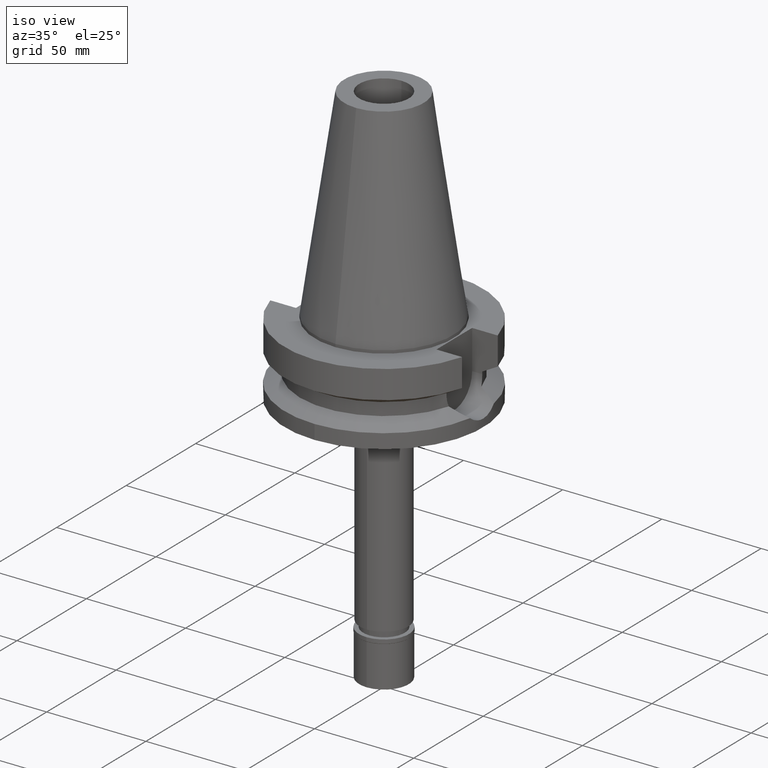
[diagram: clean part render]
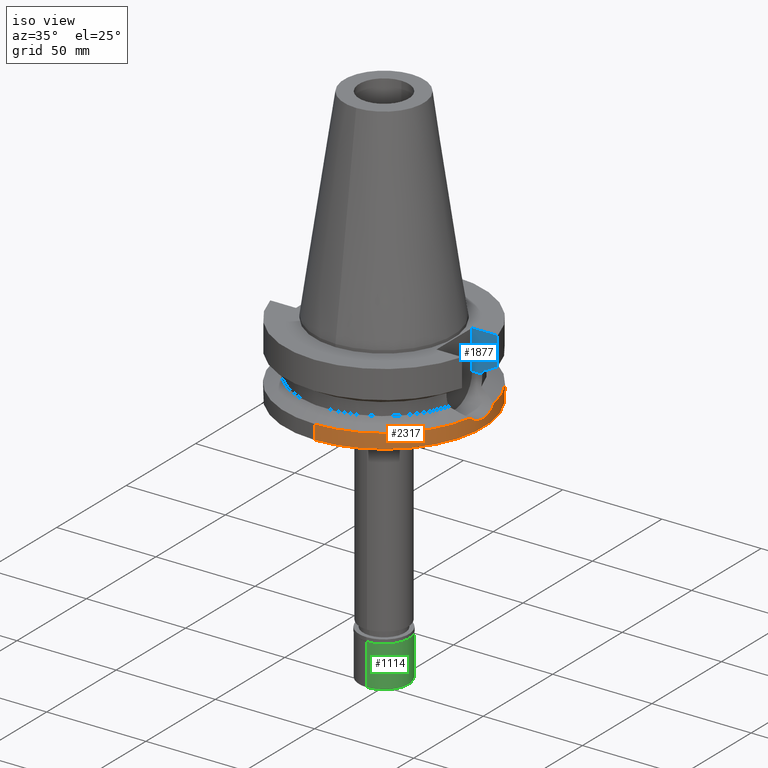
[diagram: same view with three faces highlighted in distinct colors, each labeled with its STEP entity id]
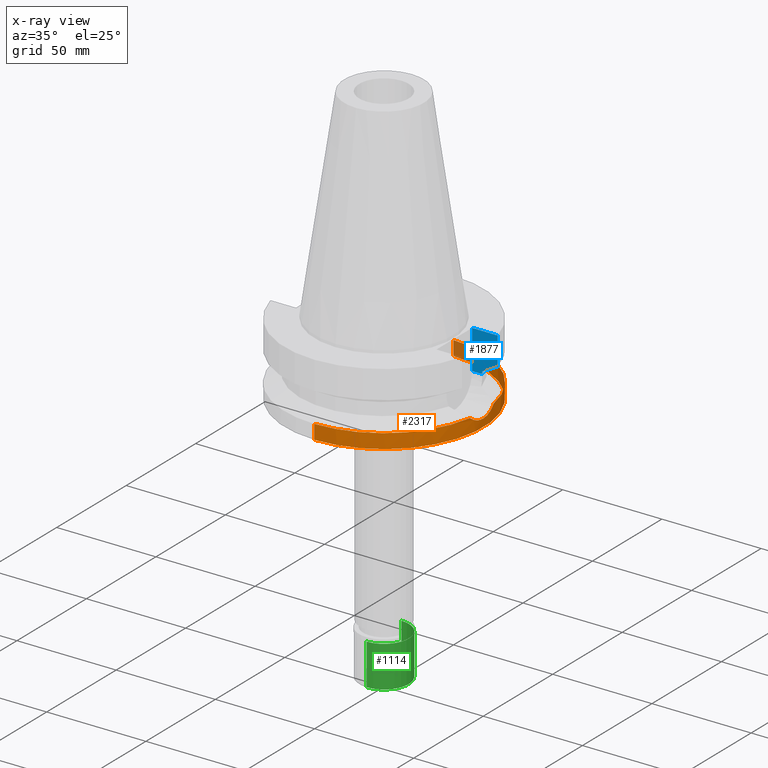
[diagram: x-ray of the same camera — body ghosted, the three highlighted faces saturated]
A machine part, iso view with three faces highlighted in distinct colors.
The next image is the same camera in x-ray (body ghosted, the three faces saturated) — at least one of them is partly hidden behind the body in this view.
Their STEP definitions:

[orange] entity #2317 — the highlighted cylindrical surface (partial cylindrical patch) has radius 50 mm, axis along (0, 0, -1).
#12 = CARTESIAN_POINT ( 'NONE',  ( 49.76776460765361776, -4.813848196981036054, -33.06469792024205390 ) ) ;
#71 = ORIENTED_EDGE ( 'NONE', *, *, #1002, .T. ) ;
#82 = CARTESIAN_POINT ( 'NONE',  ( 0.0000000000000000000, 50.00000000000000000, -30.73730776426999967 ) ) ;
#106 = CARTESIAN_POINT ( 'NONE',  ( 49.79239168047833175, 4.551645640407262050, -33.16686574701833479 ) ) ;
#122 = CARTESIAN_POINT ( 'NONE',  ( 49.79885500148548516, 4.480269389477726349, -33.19370440297814895 ) ) ;
#143 = CARTESIAN_POINT ( 'NONE',  ( 49.79170874926221302, 4.559128567680573951, -33.16402800638738313 ) ) ;
#157 = CARTESIAN_POINT ( 'NONE',  ( 49.84837068523355441, 3.895670753338368986, -33.39815263647283672 ) ) ;
#222 = CARTESIAN_POINT ( 'NONE',  ( 49.75680721490953573, -4.924372200204752303, -33.01927248165932838 ) ) ;
#301 = CARTESIAN_POINT ( 'NONE',  ( 0.0000000000000000000, 50.00000000000000000, -30.73730776426999967 ) ) ;
#321 = EDGE_CURVE ( 'NONE', #2745, #1904, #2240, .T. ) ;
#327 = DIRECTION ( 'NONE',  ( 0.0000000000000000000, -1.000000000000000000, 0.0000000000000000000 ) ) ;
#410 = DIRECTION ( 'NONE',  ( 0.0000000000000000000, 0.0000000000000000000, 1.000000000000000000 ) ) ;
#470 = DIRECTION ( 'NONE',  ( 0.0000000000000000000, 0.0000000000000000000, -1.000000000000000000 ) ) ;
#527 = CARTESIAN_POINT ( 'NONE',  ( 49.38719230598682230, -7.838125008116482384, -31.37801139005446416 ) ) ;
#587 = CARTESIAN_POINT ( 'NONE',  ( 49.73972721062401803, 5.127761864268430614, -32.94800215661364717 ) ) ;
#602 = CARTESIAN_POINT ( 'NONE',  ( 49.80628532617758708, 4.396934166445128689, -33.22451764734276480 ) ) ;
#608 = VERTEX_POINT ( 'NONE', #82 ) ;
#675 = CARTESIAN_POINT ( 'NONE',  ( 50.00000025974999573, 1.773839656225000199E-14, -34.00000114470000057 ) ) ;
#684 = VERTEX_POINT ( 'NONE', #1324 ) ;
#737 = CARTESIAN_POINT ( 'NONE',  ( 49.78971523551651046, -4.580896941052365889, -33.15574468995585278 ) ) ;
#755 = CARTESIAN_POINT ( 'NONE',  ( 49.26250064874000145, 8.556052234130000045, -30.73730776426999967 ) ) ;
#763 = CARTESIAN_POINT ( 'NONE',  ( 0.0000000000000000000, 2.629194213088999901E-14, 114.6899999999999977 ) ) ;
#771 = CARTESIAN_POINT ( 'NONE',  ( 49.49360748619132977, -7.117022366094991170, -31.87769826617949676 ) ) ;
#788 = CARTESIAN_POINT ( 'NONE',  ( 49.73403571955997649, -5.148397096680097818, -32.92466732332577095 ) ) ;
#831 = DIRECTION ( 'NONE',  ( 0.0000000000000000000, 0.0000000000000000000, -1.000000000000000000 ) ) ;
#835 = CIRCLE ( 'NONE', #2560, 50.00000000000000000 ) ;
#874 = AXIS2_PLACEMENT_3D ( 'NONE', #950, #470, #1455 ) ;
#877 = CARTESIAN_POINT ( 'NONE',  ( 49.38719044871845654, 7.838135701543769152, -31.37800184686208382 ) ) ;
#950 = CARTESIAN_POINT ( 'NONE',  ( 0.0000000000000000000, 0.0000000000000000000, -30.73730776426999967 ) ) ;
#952 = CARTESIAN_POINT ( 'NONE',  ( 49.98261131041361693, -1.500624886172816641, -33.93573978230300980 ) ) ;
#1002 = EDGE_CURVE ( 'NONE', #608, #3096, #1071, .T. ) ;
#1021 = LINE ( 'NONE', #301, #1375 ) ;
#1071 = CIRCLE ( 'NONE', #874, 50.00000000000000000 ) ;
#1094 = EDGE_CURVE ( 'NONE', #608, #1904, #1021, .T. ) ;
#1099 = CARTESIAN_POINT ( 'NONE',  ( 49.79347438493346090, 4.539752812038758911, -33.17136368401218505 ) ) ;
#1101 = DIRECTION ( 'NONE',  ( 0.0000000000000000000, 0.0000000000000000000, -1.000000000000000000 ) ) ;
#1131 = CARTESIAN_POINT ( 'NONE',  ( 49.90869642993366284, 3.032807478717609584, -33.64331436785673191 ) ) ;
#1245 = CARTESIAN_POINT ( 'NONE',  ( 0.0000000000000000000, -50.00000000000000000, -38.00000000000000000 ) ) ;
#1257 = CARTESIAN_POINT ( 'NONE',  ( 49.78849615495381897, -4.594160771130254339, -33.15068097419731430 ) ) ;
#1324 = CARTESIAN_POINT ( 'NONE',  ( 0.0000000000000000000, -50.00000000000000000, -30.73730776426999967 ) ) ;
#1348 = CARTESIAN_POINT ( 'NONE',  ( 50.00000025975000284, 0.7410749815654468220, -34.00000000000000000 ) ) ;
#1355 = VERTEX_POINT ( 'NONE', #675 ) ;
#1375 = VECTOR ( 'NONE', #2655, 1000.000000000000000 ) ;
#1379 = DIRECTION ( 'NONE',  ( 0.9852500129747439050, -0.1711210446826074982, 0.0000000000000000000 ) ) ;
#1415 = DIRECTION ( 'NONE',  ( 0.0000000000000000000, -2.250196262218999978E-14, -1.000000000000000000 ) ) ;
#1429 = CARTESIAN_POINT ( 'NONE',  ( 0.0000000000000000000, -50.00000000000000000, -30.73730776426999967 ) ) ;
#1455 = DIRECTION ( 'NONE',  ( 0.0000000000000000000, 1.000000000000000000, 0.0000000000000000000 ) ) ;
#1492 = CARTESIAN_POINT ( 'NONE',  ( 50.00000025974999573, 1.773839656225000199E-14, -34.00000114470000057 ) ) ;
#1535 = CARTESIAN_POINT ( 'NONE',  ( 49.98260905407070709, 1.500665618697640591, -33.93573820485949000 ) ) ;
#1558 = CARTESIAN_POINT ( 'NONE',  ( 49.49360244394586061, 7.117060693272811100, -31.87766899456907055 ) ) ;
#1588 = CARTESIAN_POINT ( 'NONE',  ( 49.66987082489866623, 5.762061219778822796, -32.66234491614495994 ) ) ;
#1696 = CARTESIAN_POINT ( 'NONE',  ( 49.78562820798057942, -4.625197376671376759, -33.13877319680146627 ) ) ;
#1726 = CARTESIAN_POINT ( 'NONE',  ( 49.26250064874000145, -8.556052234130000045, -30.73730776426999967 ) ) ;
#1747 = CARTESIAN_POINT ( 'NONE',  ( 49.86088866505888717, -3.802344464343887953, -33.45151161006945273 ) ) ;
#1753 = VECTOR ( 'NONE', #1415, 1000.000000000000000 ) ;
#1895 = EDGE_CURVE ( 'NONE', #3087, #684, #835, .T. ) ;
#1904 = VERTEX_POINT ( 'NONE', #2591 ) ;
#1929 = EDGE_LOOP ( 'NONE', ( #2661, #2603, #1955, #2569, #71, #2667, #2202 ) ) ;
#1955 = ORIENTED_EDGE ( 'NONE', *, *, #321, .T. ) ;
#1975 = CARTESIAN_POINT ( 'NONE',  ( 49.79052572487636752, -4.572062755400229328, -33.15911172841806831 ) ) ;
#2060 = EDGE_CURVE ( 'NONE', #3087, #1355, #2204, .T. ) ;
#2084 = CARTESIAN_POINT ( 'NONE',  ( 50.00000025974999573, 1.773839656225000199E-14, -34.00000114470000057 ) ) ;
#2147 = AXIS2_PLACEMENT_3D ( 'NONE', #763, #831, #327 ) ;
#2202 = ORIENTED_EDGE ( 'NONE', *, *, #2060, .F. ) ;
#2204 = B_SPLINE_CURVE_WITH_KNOTS ( 'NONE', 3,
 ( #2447, #527, #771, #2901, #2402, #2955, #788, #222, #12, #2215, #1696, #1257, #737, #1975, #2416, #1747, #2234, #952, #2717, #1492 ),
 .UNSPECIFIED., .F., .F.,
 ( 4, 2, 2, 2, 1, 1, 1, 1, 2, 2, 2, 4 ),
 ( 0.0000000000000000000, 0.2500000000000269229, 0.3750000000000409672, 0.4375000000000479616, 0.4687500000000509592, 0.4843750000000523470, 0.4921875000000530687, 0.4960937500000536238, 0.4980468750000537903, 0.5000000000000539568, 0.7500000000000269784, 1.000000000000000000 ),
 .UNSPECIFIED. ) ;
#2215 = CARTESIAN_POINT ( 'NONE',  ( 49.77979861139304063, -4.687619708212848124, -33.11458520027417762 ) ) ;
#2234 = CARTESIAN_POINT ( 'NONE',  ( 49.91305551306805910, -3.031270826675121821, -33.66153124142346087 ) ) ;
#2240 = CIRCLE ( 'NONE', #3054, 50.00000000000000000 ) ;
#2317 = ADVANCED_FACE ( 'NONE', ( #2692 ), #2931, .T. ) ;
#2371 = EDGE_CURVE ( 'NONE', #1355, #3096, #3044, .T. ) ;
#2402 = CARTESIAN_POINT ( 'NONE',  ( 49.66531577325520175, -5.772453008485722847, -32.63570655755663097 ) ) ;
#2416 = CARTESIAN_POINT ( 'NONE',  ( 49.79078946304657904, -4.569185635693721714, -33.16020745295651295 ) ) ;
#2447 = CARTESIAN_POINT ( 'NONE',  ( 49.26250064874000145, -8.556052234130000045, -30.73730776426999967 ) ) ;
#2507 = CARTESIAN_POINT ( 'NONE',  ( 49.26250064874000145, 8.556052234130000045, -30.73730776426999967 ) ) ;
#2556 = CARTESIAN_POINT ( 'NONE',  ( 49.93043543703279141, 2.648726358614579279, -33.73005955322813776 ) ) ;
#2558 = CARTESIAN_POINT ( 'NONE',  ( 0.0000000000000000000, 0.0000000000000000000, -30.73730776426999967 ) ) ;
#2560 = AXIS2_PLACEMENT_3D ( 'NONE', #2558, #1101, #1379 ) ;
#2569 = ORIENTED_EDGE ( 'NONE', *, *, #1094, .F. ) ;
#2575 = CARTESIAN_POINT ( 'NONE',  ( 49.79509525719130636, 4.521911686745543335, -33.17809616903531378 ) ) ;
#2591 = CARTESIAN_POINT ( 'NONE',  ( 0.0000000000000000000, 50.00000000000000000, -38.00000000000000000 ) ) ;
#2603 = ORIENTED_EDGE ( 'NONE', *, *, #2891, .T. ) ;
#2655 = DIRECTION ( 'NONE',  ( 0.0000000000000000000, 2.152361642122000014E-14, -1.000000000000000000 ) ) ;
#2661 = ORIENTED_EDGE ( 'NONE', *, *, #1895, .T. ) ;
#2667 = ORIENTED_EDGE ( 'NONE', *, *, #2371, .F. ) ;
#2692 = FACE_OUTER_BOUND ( 'NONE', #1929, .T. ) ;
#2717 = CARTESIAN_POINT ( 'NONE',  ( 50.00000025975000995, -0.7410656248674672986, -33.99999999999999289 ) ) ;
#2745 = VERTEX_POINT ( 'NONE', #1245 ) ;
#2777 = CARTESIAN_POINT ( 'NONE',  ( 49.86956621715521010, 3.608177968212753051, -33.48463145067453439 ) ) ;
#2827 = DIRECTION ( 'NONE',  ( 0.0000000000000000000, -1.000000000000000000, 0.0000000000000000000 ) ) ;
#2845 = LINE ( 'NONE', #1429, #1753 ) ;
#2891 = EDGE_CURVE ( 'NONE', #684, #2745, #2845, .T. ) ;
#2901 = CARTESIAN_POINT ( 'NONE',  ( 49.62581554093466707, -6.100699782868909793, -32.46623685337687704 ) ) ;
#2931 = CYLINDRICAL_SURFACE ( 'NONE', #2147, 50.00000000000000000 ) ;
#2955 = CARTESIAN_POINT ( 'NONE',  ( 49.71771244284516200, -5.301720186803214219, -32.85659238532768001 ) ) ;
#3044 = B_SPLINE_CURVE_WITH_KNOTS ( 'NONE', 3,
 ( #2084, #1348, #1535, #2556, #1131, #2777, #157, #3051, #602, #122, #2575, #1099, #106, #143, #587, #1588, #1558, #877, #2507 ),
 .UNSPECIFIED., .F., .F.,
 ( 4, 2, 2, 1, 1, 1, 1, 1, 2, 2, 2, 4 ),
 ( 0.0000000000000000000, 0.2499999999999905631, 0.3749999999999857336, 0.4374999999999832911, 0.4687499999999823475, 0.4843749999999821809, 0.4921874999999816258, 0.4960937499999814038, 0.4980468749999812372, 0.4999999999999811262, 0.7499999999999905631, 1.000000000000000000 ),
 .UNSPECIFIED. ) ;
#3051 = CARTESIAN_POINT ( 'NONE',  ( 49.82078931997653370, 4.230072290330788576, -33.28453423727220439 ) ) ;
#3054 = AXIS2_PLACEMENT_3D ( 'NONE', #3057, #410, #2827 ) ;
#3057 = CARTESIAN_POINT ( 'NONE',  ( 0.0000000000000000000, 2.629194213088999901E-14, -38.00000000000000000 ) ) ;
#3087 = VERTEX_POINT ( 'NONE', #1726 ) ;
#3096 = VERTEX_POINT ( 'NONE', #755 ) ;

[blue] entity #1877 — the highlighted planar face has unit normal (0, 1, 0).
#144 = CARTESIAN_POINT ( 'NONE',  ( 48.32056912815000516, 12.85000385725999905, -15.66265768273000170 ) ) ;
#266 = LINE ( 'NONE', #1206, #701 ) ;
#279 = VECTOR ( 'NONE', #925, 1000.000000000000000 ) ;
#316 = DIRECTION ( 'NONE',  ( 7.242780307647712764E-08, -2.723541219869895713E-07, 0.9999999999999603650 ) ) ;
#344 = CARTESIAN_POINT ( 'NONE',  ( 48.32056912815000516, 12.85000385725999905, -15.66265768273000170 ) ) ;
#369 = DIRECTION ( 'NONE',  ( 9.395523002366738675E-07, -2.962029390682913821E-06, 0.9999999999951717511 ) ) ;
#393 = FACE_OUTER_BOUND ( 'NONE', #1092, .T. ) ;
#459 = LINE ( 'NONE', #1827, #2604 ) ;
#481 = VERTEX_POINT ( 'NONE', #144 ) ;
#524 = B_SPLINE_CURVE_WITH_KNOTS ( 'NONE', 3,
 ( #344, #1327, #2306, #2079 ),
 .UNSPECIFIED., .F., .F.,
 ( 4, 4 ),
 ( 0.0000000000000000000, 1.000000000000000000 ),
 .UNSPECIFIED. ) ;
#601 = EDGE_CURVE ( 'NONE', #481, #1284, #524, .T. ) ;
#701 = VECTOR ( 'NONE', #2176, 1000.000000000000000 ) ;
#751 = CARTESIAN_POINT ( 'NONE',  ( 40.51083188481999997, 12.84999999999999964, -21.14999999999999858 ) ) ;
#781 = AXIS2_PLACEMENT_3D ( 'NONE', #1812, #1666, #2354 ) ;
#895 = CARTESIAN_POINT ( 'NONE',  ( 35.39999999999999858, 12.84999999999999964, -1.500000000000000000 ) ) ;
#925 = DIRECTION ( 'NONE',  ( 1.000000000000000000, 0.0000000000000000000, 0.0000000000000000000 ) ) ;
#986 = VERTEX_POINT ( 'NONE', #751 ) ;
#1025 = ORIENTED_EDGE ( 'NONE', *, *, #1858, .T. ) ;
#1092 = EDGE_LOOP ( 'NONE', ( #1108, #1774, #1315, #3134, #1686, #1025 ) ) ;
#1108 = ORIENTED_EDGE ( 'NONE', *, *, #601, .F. ) ;
#1139 = VECTOR ( 'NONE', #316, 1000.000000000000114 ) ;
#1206 = CARTESIAN_POINT ( 'NONE',  ( 35.39999999999999858, 12.84999999999999964, -21.14999999999999858 ) ) ;
#1284 = VERTEX_POINT ( 'NONE', #1893 ) ;
#1315 = ORIENTED_EDGE ( 'NONE', *, *, #2944, .F. ) ;
#1327 = CARTESIAN_POINT ( 'NONE',  ( 45.51179901593025079, 12.85000770987397090, -17.22986705846993161 ) ) ;
#1469 = VERTEX_POINT ( 'NONE', #2151 ) ;
#1635 = VECTOR ( 'NONE', #369, 1000.000000000000227 ) ;
#1666 = DIRECTION ( 'NONE',  ( -0.0000000000000000000, 1.000000000000000000, 0.0000000000000000000 ) ) ;
#1686 = ORIENTED_EDGE ( 'NONE', *, *, #3124, .T. ) ;
#1714 = EDGE_CURVE ( 'NONE', #481, #2636, #1805, .T. ) ;
#1774 = ORIENTED_EDGE ( 'NONE', *, *, #1714, .T. ) ;
#1805 = LINE ( 'NONE', #2027, #1139 ) ;
#1812 = CARTESIAN_POINT ( 'NONE',  ( 35.39999999999999858, 12.84999999999999964, -21.14999999999999858 ) ) ;
#1827 = CARTESIAN_POINT ( 'NONE',  ( 35.39999999999999858, 12.84999999999999964, -1.500000000000000000 ) ) ;
#1858 = EDGE_CURVE ( 'NONE', #986, #1284, #2554, .T. ) ;
#1877 = ADVANCED_FACE ( 'NONE', ( #393 ), #3120, .F. ) ;
#1893 = CARTESIAN_POINT ( 'NONE',  ( 40.51083297203000200, 12.84999657246999938, -19.99284555851999912 ) ) ;
#1906 = LINE ( 'NONE', #2123, #279 ) ;
#1952 = EDGE_CURVE ( 'NONE', #2025, #1469, #459, .T. ) ;
#2025 = VERTEX_POINT ( 'NONE', #895 ) ;
#2027 = CARTESIAN_POINT ( 'NONE',  ( 48.32056912815000516, 12.85000385725999905, -15.66265768273000170 ) ) ;
#2079 = CARTESIAN_POINT ( 'NONE',  ( 40.51083297203000200, 12.84999657246999938, -19.99284555851999912 ) ) ;
#2123 = CARTESIAN_POINT ( 'NONE',  ( 35.39999999999999858, 12.84999999999999964, -1.500000000000000000 ) ) ;
#2151 = CARTESIAN_POINT ( 'NONE',  ( 35.39999999999999858, 12.84999999999999964, -21.14999999999999858 ) ) ;
#2176 = DIRECTION ( 'NONE',  ( 1.000000000000000000, -3.336643826789999529E-14, 0.0000000000000000000 ) ) ;
#2306 = CARTESIAN_POINT ( 'NONE',  ( 42.90862489466591256, 12.84999313797018594, -18.67324780284967645 ) ) ;
#2307 = DIRECTION ( 'NONE',  ( 0.0000000000000000000, 0.0000000000000000000, -1.000000000000000000 ) ) ;
#2354 = DIRECTION ( 'NONE',  ( 1.000000000000000000, 0.0000000000000000000, 0.0000000000000000000 ) ) ;
#2488 = CARTESIAN_POINT ( 'NONE',  ( 48.32057015392000210, 12.84999999999999964, -1.500000000000000000 ) ) ;
#2554 = LINE ( 'NONE', #2801, #1635 ) ;
#2604 = VECTOR ( 'NONE', #2307, 1000.000000000000000 ) ;
#2636 = VERTEX_POINT ( 'NONE', #2488 ) ;
#2801 = CARTESIAN_POINT ( 'NONE',  ( 40.51083188481999997, 12.84999999999999964, -21.14999999999999858 ) ) ;
#2944 = EDGE_CURVE ( 'NONE', #2025, #2636, #1906, .T. ) ;
#3120 = PLANE ( 'NONE',  #781 ) ;
#3124 = EDGE_CURVE ( 'NONE', #1469, #986, #266, .T. ) ;
#3134 = ORIENTED_EDGE ( 'NONE', *, *, #1952, .T. ) ;

[green] entity #1114 — the highlighted cylindrical surface (edge-blend (fillet) strip) has radius 12.5 mm, axis along (0, 0, -1).
#6 = AXIS2_PLACEMENT_3D ( 'NONE', #386, #2788, #2334 ) ;
#31 = DIRECTION ( 'NONE',  ( 0.0000000000000000000, 0.0000000000000000000, -1.000000000000000000 ) ) ;
#134 = VERTEX_POINT ( 'NONE', #277 ) ;
#211 = CARTESIAN_POINT ( 'NONE',  ( 0.0000000000000000000, -12.50000000000000000, -2.100000000000000089 ) ) ;
#277 = CARTESIAN_POINT ( 'NONE',  ( 0.0000000000000000000, 12.50000000000000000, -2.100000000000000089 ) ) ;
#312 = CIRCLE ( 'NONE', #519, 12.50000000000000000 ) ;
#370 = DIRECTION ( 'NONE',  ( 0.0000000000000000000, -1.000000000000000000, 0.0000000000000000000 ) ) ;
#386 = CARTESIAN_POINT ( 'NONE',  ( 0.0000000000000000000, 0.0000000000000000000, -2.100000000000000089 ) ) ;
#519 = AXIS2_PLACEMENT_3D ( 'NONE', #1551, #598, #370 ) ;
#598 = DIRECTION ( 'NONE',  ( 0.0000000000000000000, 0.0000000000000000000, 1.000000000000000000 ) ) ;
#620 = EDGE_CURVE ( 'NONE', #2001, #1423, #312, .T. ) ;
#661 = CARTESIAN_POINT ( 'NONE',  ( 0.0000000000000000000, 12.50000000000000000, -22.89999999999999858 ) ) ;
#705 = DIRECTION ( 'NONE',  ( 0.0000000000000000000, 0.0000000000000000000, -1.000000000000000000 ) ) ;
#793 = ORIENTED_EDGE ( 'NONE', *, *, #2439, .T. ) ;
#936 = EDGE_LOOP ( 'NONE', ( #2552, #793, #1304, #1238 ) ) ;
#1081 = CARTESIAN_POINT ( 'NONE',  ( 0.0000000000000000000, -12.50000000000000000, -22.89999999999999858 ) ) ;
#1114 = ADVANCED_FACE ( 'NONE', ( #1992 ), #1460, .T. ) ;
#1238 = ORIENTED_EDGE ( 'NONE', *, *, #1274, .F. ) ;
#1274 = EDGE_CURVE ( 'NONE', #134, #1423, #1346, .T. ) ;
#1303 = VECTOR ( 'NONE', #705, 1000.000000000000000 ) ;
#1304 = ORIENTED_EDGE ( 'NONE', *, *, #620, .T. ) ;
#1346 = LINE ( 'NONE', #3094, #1923 ) ;
#1423 = VERTEX_POINT ( 'NONE', #661 ) ;
#1460 = CYLINDRICAL_SURFACE ( 'NONE', #2941, 12.50000000000000000 ) ;
#1551 = CARTESIAN_POINT ( 'NONE',  ( 0.0000000000000000000, 0.0000000000000000000, -22.89999999999999858 ) ) ;
#1824 = EDGE_CURVE ( 'NONE', #134, #2244, #3109, .T. ) ;
#1923 = VECTOR ( 'NONE', #3064, 1000.000000000000000 ) ;
#1992 = FACE_OUTER_BOUND ( 'NONE', #936, .T. ) ;
#2001 = VERTEX_POINT ( 'NONE', #1081 ) ;
#2244 = VERTEX_POINT ( 'NONE', #2485 ) ;
#2252 = CARTESIAN_POINT ( 'NONE',  ( 0.0000000000000000000, 0.0000000000000000000, 0.0000000000000000000 ) ) ;
#2334 = DIRECTION ( 'NONE',  ( 0.0000000000000000000, 1.000000000000000000, 0.0000000000000000000 ) ) ;
#2367 = LINE ( 'NONE', #211, #1303 ) ;
#2439 = EDGE_CURVE ( 'NONE', #2244, #2001, #2367, .T. ) ;
#2451 = DIRECTION ( 'NONE',  ( 0.0000000000000000000, -1.000000000000000000, 0.0000000000000000000 ) ) ;
#2485 = CARTESIAN_POINT ( 'NONE',  ( 0.0000000000000000000, -12.50000000000000000, -2.100000000000000089 ) ) ;
#2552 = ORIENTED_EDGE ( 'NONE', *, *, #1824, .T. ) ;
#2788 = DIRECTION ( 'NONE',  ( 0.0000000000000000000, 0.0000000000000000000, -1.000000000000000000 ) ) ;
#2941 = AXIS2_PLACEMENT_3D ( 'NONE', #2252, #31, #2451 ) ;
#3064 = DIRECTION ( 'NONE',  ( 0.0000000000000000000, 0.0000000000000000000, -1.000000000000000000 ) ) ;
#3094 = CARTESIAN_POINT ( 'NONE',  ( 0.0000000000000000000, 12.50000000000000000, -2.100000000000000089 ) ) ;
#3109 = CIRCLE ( 'NONE', #6, 12.50000000000000000 ) ;